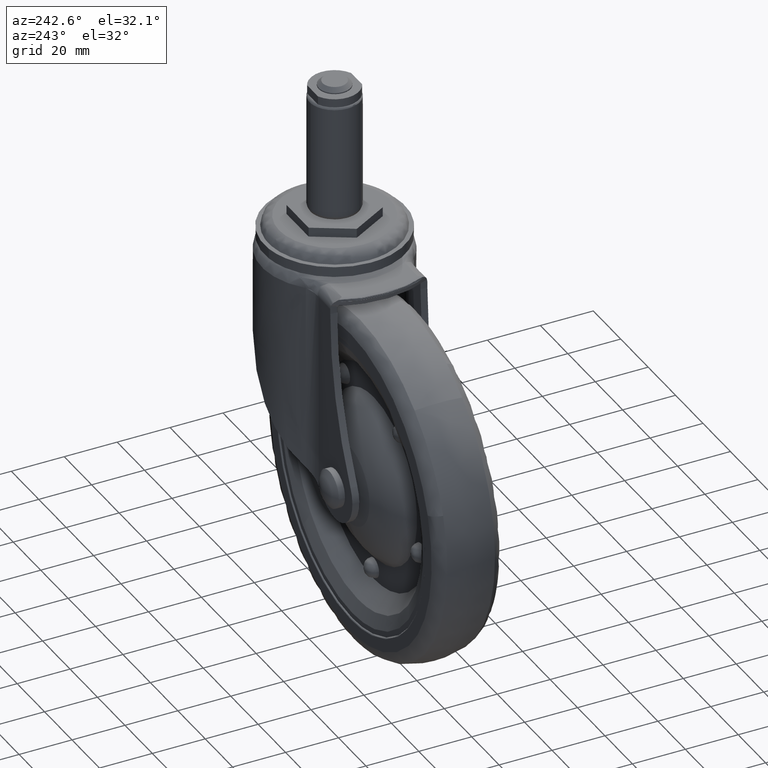
[diagram: clean part render]
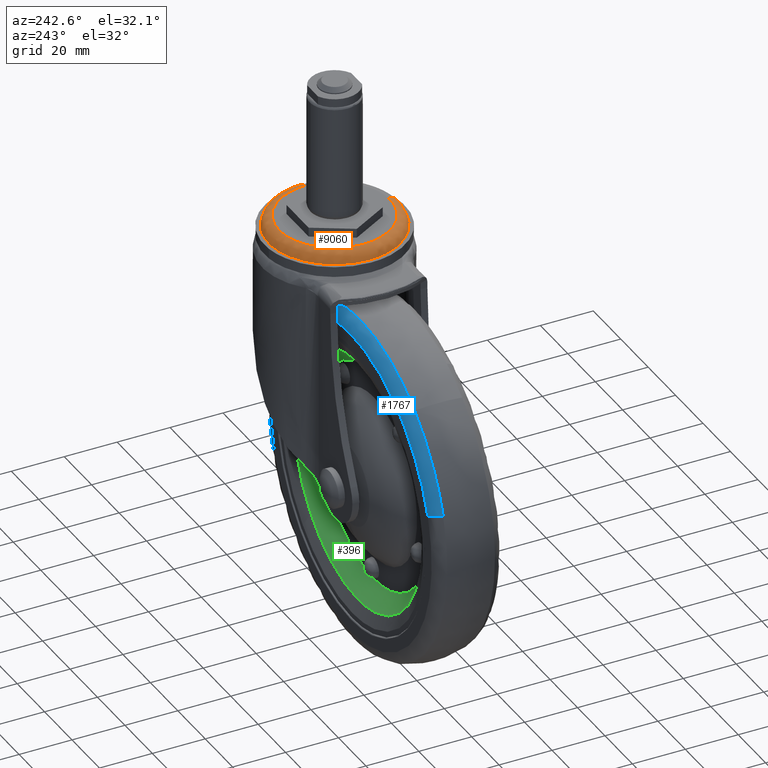
[diagram: same view with three faces highlighted in distinct colors, each labeled with its STEP entity id]
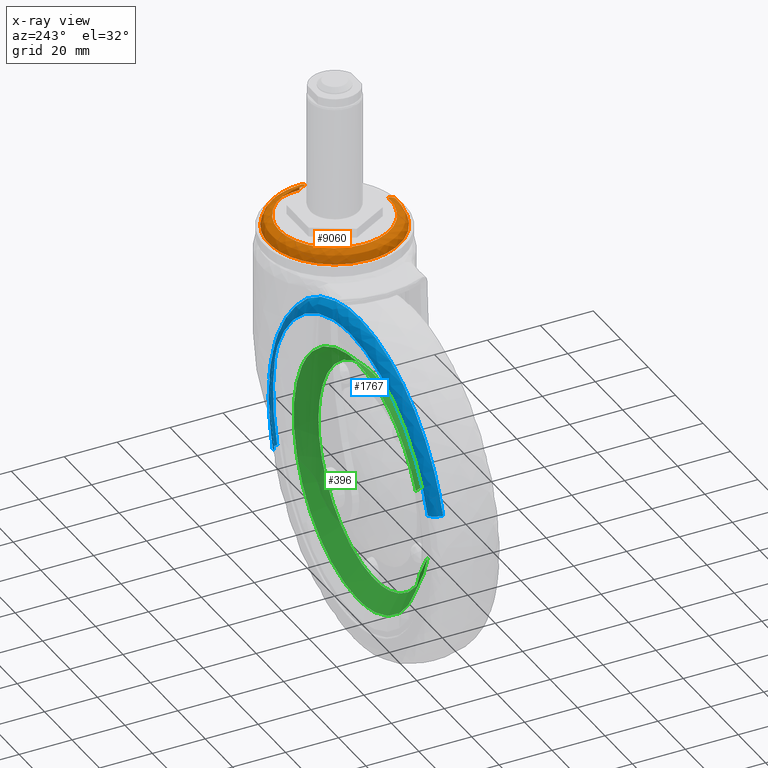
[diagram: x-ray of the same camera — body ghosted, the three highlighted faces saturated]
A machine part, auxiliary view with three faces highlighted in distinct colors.
The next image is the same camera in x-ray (body ghosted, the three faces saturated) — at least one of them is partly hidden behind the body in this view.
Their STEP definitions:

[orange] entity #9060 — the highlighted face is a freeform B-spline surface patch.
#8925=CARTESIAN_POINT('',(1.445000917704482,-20.671407473909525,-2.509465567661533));
#8926=CARTESIAN_POINT('',(0.853394687727092,-20.712762739452813,-2.509465567661533));
#8927=CARTESIAN_POINT('',(0.260391607862793,-20.720215028206738,-2.509465567661533));
#8928=CARTESIAN_POINT('',(-20.459823420343934,-20.980606636069520,-2.509465567661533));
#8929=CARTESIAN_POINT('',(-20.720215028206738,-0.260391607862794,-2.509465567661533));
#8930=CARTESIAN_POINT('',(-20.980606636069520,20.459823420343934,-2.509465567661533));
#8931=CARTESIAN_POINT('',(-0.260391607862795,20.720215028206738,-2.509465567661533));
#8932=CARTESIAN_POINT('',(20.459823420343934,20.980606636069520,-2.509465567661533));
#8933=CARTESIAN_POINT('',(20.720215028206738,0.260391607862796,-2.509465567661533));
#8934=CARTESIAN_POINT('',(1.764957582710349,-25.248535775555400,-2.189633924568727));
#8935=CARTESIAN_POINT('',(1.042356033615126,-25.299048054552138,-2.189633924568726));
#8936=CARTESIAN_POINT('',(0.318048339721238,-25.308150452608508,-2.189633924568726));
#8937=CARTESIAN_POINT('',(-24.990102112887275,-25.626198792329738,-2.189633924568727));
#8938=CARTESIAN_POINT('',(-25.308150452608508,-0.318048339721239,-2.189633924568726));
#8939=CARTESIAN_POINT('',(-25.626198792329738,24.990102112887275,-2.189633924568727));
#8940=CARTESIAN_POINT('',(-0.318048339721241,25.308150452608508,-2.189633924568726));
#8941=CARTESIAN_POINT('',(24.990102112887275,25.626198792329738,-2.189633924568727));
#8942=CARTESIAN_POINT('',(25.308150452608508,0.318048339721242,-2.189633924568726));
#8943=CARTESIAN_POINT('',(1.742654717695469,-24.929482960495204,-6.777931639467693));
#8944=CARTESIAN_POINT('',(1.029184314281529,-24.979356941693101,-6.777931639467691));
#8945=CARTESIAN_POINT('',(0.314029325746909,-24.988344317407204,-6.777931639467690));
#8946=CARTESIAN_POINT('',(-24.674314991660289,-25.302373643154120,-6.777931639467689));
#8947=CARTESIAN_POINT('',(-24.988344317407204,-0.314029325746911,-6.777931639467690));
#8948=CARTESIAN_POINT('',(-25.302373643154120,24.674314991660289,-6.777931639467689));
#8949=CARTESIAN_POINT('',(-0.314029325746912,24.988344317407204,-6.777931639467690));
#8950=CARTESIAN_POINT('',(24.674314991660289,25.302373643154120,-6.777931639467689));
#8951=CARTESIAN_POINT('',(24.988344317407204,0.314029325746914,-6.777931639467690));
#8959=(BOUNDED_SURFACE()B_SPLINE_SURFACE(2,2,((#8925,#8934,#8943),(#8926,#8935,#8944),(#8927,#8936,#8945),(#8928,#8937,#8946),(#8929,#8938,#8947),(#8930,#8939,#8948),(#8931,#8940,#8949),(#8932,#8941,#8950),(#8933,#8942,#8951)),.UNSPECIFIED.,.F.,.F.,.U.)B_SPLINE_SURFACE_WITH_KNOTS((3,2,2,2,3),(3,3),(0.0,1.656210966895878,43.061524626477024,84.466838286058163,125.872151945639300),(0.0,7.289496406772130),.UNSPECIFIED.)GEOMETRIC_REPRESENTATION_ITEM()RATIONAL_B_SPLINE_SURFACE(((0.895729780707462,0.587800190257190,0.895729757996359),(0.905606538837210,0.594281564922667,0.905606515875684),(0.916342144609695,0.601326536800914,0.916342121375969),(0.647951744340539,0.425202071879348,0.647951727911814),(0.916342144609695,0.601326536800914,0.916342121375969),(0.647951744340539,0.425202071879348,0.647951727911814),(0.916342144609695,0.601326536800914,0.916342121375969),(0.647951744340539,0.425202071879348,0.647951727911814),(0.916342144609695,0.601326536800914,0.916342121375969)))REPRESENTATION_ITEM('')SURFACE());
#8960=CARTESIAN_POINT('',(1.464398284455873,-20.948879160680089,-2.499783000000094));
#8961=VERTEX_POINT('',#8960);
#8962=CARTESIAN_POINT('',(-21.0,0.0,-2.499783000000095));
#8963=VERTEX_POINT('',#8962);
#8964=CARTESIAN_POINT('',(1.464398284455874,-20.948879160680089,-2.499783000000094));
#8965=CARTESIAN_POINT('',(0.733091434038523,-21.0,-2.499783000000096));
#8966=CARTESIAN_POINT('',(0.0,-21.0,-2.499783000000095));
#8967=CARTESIAN_POINT('',(-21.000000000000007,-21.000000000000007,-2.499783000000096));
#8968=CARTESIAN_POINT('',(-21.0,0.0,-2.499783000000095));
#8976=(BOUNDED_CURVE()B_SPLINE_CURVE(2,(#8964,#8965,#8966,#8967,#8968),.UNSPECIFIED.,.F.,.U.)B_SPLINE_CURVE_WITH_KNOTS((3,2,3),(0.737833686524181,0.750000000000000,1.0),.UNSPECIFIED.)CURVE()GEOMETRIC_REPRESENTATION_ITEM()RATIONAL_B_SPLINE_CURVE((0.972879876363898,0.985746277139895,1.0,0.707106781186547,1.0))REPRESENTATION_ITEM(''));
#8977=EDGE_CURVE('',#8961,#8963,#8976,.T.);
#8978=ORIENTED_EDGE('',*,*,#8977,.T.);
#8979=CARTESIAN_POINT('',(20.998341936107170,0.263886838147629,-2.499783000000094));
#8980=VERTEX_POINT('',#8979);
#8981=CARTESIAN_POINT('',(-21.0,0.0,-2.499783000000095));
#8982=CARTESIAN_POINT('',(-21.000000000000007,21.000000000000007,-2.499783000000096));
#8983=CARTESIAN_POINT('',(0.0,21.0,-2.499783000000095));
#8984=CARTESIAN_POINT('',(20.737750527068297,20.999999999999996,-2.499783000000096));
#8985=CARTESIAN_POINT('',(20.998341936107174,0.263886838147629,-2.499783000000095));
#8993=(BOUNDED_CURVE()B_SPLINE_CURVE(2,(#8981,#8982,#8983,#8984,#8985),.UNSPECIFIED.,.F.,.U.)B_SPLINE_CURVE_WITH_KNOTS((3,2,3),(0.0,0.250000000000000,0.497784295913373),.UNSPECIFIED.)CURVE()GEOMETRIC_REPRESENTATION_ITEM()RATIONAL_B_SPLINE_CURVE((1.0,0.707106781186547,1.0,0.709702639994029,0.994854295624782))REPRESENTATION_ITEM(''));
#8994=EDGE_CURVE('',#8963,#8980,#8993,.T.);
#8995=ORIENTED_EDGE('',*,*,#8994,.T.);
#8996=CARTESIAN_POINT('',(24.998026105094059,0.314150997190723,-6.499782999948542));
#8997=VERTEX_POINT('',#8996);
#8998=CARTESIAN_POINT('',(20.998341936107170,0.263886838147629,-2.499783000000094));
#8999=CARTESIAN_POINT('',(24.998026104992309,0.314150997082501,-2.499783015667934));
#9000=CARTESIAN_POINT('',(24.998026105094048,0.314150997190723,-6.499782999948542));
#9008=(BOUNDED_CURVE()B_SPLINE_CURVE(2,(#8998,#8999,#9000),.UNSPECIFIED.,.F.,.U.)B_SPLINE_CURVE_WITH_KNOTS((3,3),(-1.734750787588309,-0.265249208368382),.UNSPECIFIED.)CURVE()GEOMETRIC_REPRESENTATION_ITEM()RATIONAL_B_SPLINE_CURVE((0.889029722134028,0.628638946943257,0.889029723566950))REPRESENTATION_ITEM(''));
#9009=EDGE_CURVE('',#8980,#8997,#9008,.T.);
#9010=ORIENTED_EDGE('',*,*,#9009,.T.);
#9011=CARTESIAN_POINT('',(-25.0,0.0,-6.499783000000091));
#9012=VERTEX_POINT('',#9011);
#9013=CARTESIAN_POINT('',(-25.0,0.0,-6.499783000000091));
#9014=CARTESIAN_POINT('',(-25.000000000000004,25.000000000000004,-6.499783000000091));
#9015=CARTESIAN_POINT('',(0.0,25.0,-6.499783000000091));
#9016=CARTESIAN_POINT('',(24.687798247471655,25.0,-6.499783000000091));
#9017=CARTESIAN_POINT('',(24.998026105094052,0.314150997190723,-6.499782999948542));
#9025=(BOUNDED_CURVE()B_SPLINE_CURVE(2,(#9013,#9014,#9015,#9016,#9017),.UNSPECIFIED.,.F.,.U.)B_SPLINE_CURVE_WITH_KNOTS((3,2,3),(0.0,0.250000000000000,0.497784295920224),.UNSPECIFIED.)CURVE()GEOMETRIC_REPRESENTATION_ITEM()RATIONAL_B_SPLINE_CURVE((1.0,0.707106781186547,1.0,0.709702639986002,0.994854295640550))REPRESENTATION_ITEM(''));
#9026=EDGE_CURVE('',#9012,#8997,#9025,.T.);
#9027=ORIENTED_EDGE('',*,*,#9026,.F.);
#9028=CARTESIAN_POINT('',(1.743331289518651,-24.939141846001540,-6.499782999951200));
#9029=VERTEX_POINT('',#9028);
#9030=CARTESIAN_POINT('',(1.743331289518651,-24.939141846001544,-6.499782999951200));
#9031=CARTESIAN_POINT('',(0.872727897000884,-24.999999999999996,-6.499783000000091));
#9032=CARTESIAN_POINT('',(0.0,-25.0,-6.499783000000091));
#9033=CARTESIAN_POINT('',(-25.000000000000004,-25.000000000000004,-6.499783000000091));
#9034=CARTESIAN_POINT('',(-25.0,0.0,-6.499783000000091));
#9042=(BOUNDED_CURVE()B_SPLINE_CURVE(2,(#9030,#9031,#9032,#9033,#9034),.UNSPECIFIED.,.F.,.U.)B_SPLINE_CURVE_WITH_KNOTS((3,2,3),(0.737833686533306,0.750000000000000,1.0),.UNSPECIFIED.)CURVE()GEOMETRIC_REPRESENTATION_ITEM()RATIONAL_B_SPLINE_CURVE((0.972879876383198,0.985746277150586,1.0,0.707106781186547,1.0))REPRESENTATION_ITEM(''));
#9043=EDGE_CURVE('',#9029,#9012,#9042,.T.);
#9044=ORIENTED_EDGE('',*,*,#9043,.F.);
#9045=CARTESIAN_POINT('',(1.464398284455873,-20.948879160680082,-2.499783000000095));
#9046=CARTESIAN_POINT('',(1.743331289379219,-24.939141845913269,-2.499783020204555));
#9047=CARTESIAN_POINT('',(1.743331289518650,-24.939141846001540,-6.499782999951200));
#9055=(BOUNDED_CURVE()B_SPLINE_CURVE(2,(#9045,#9046,#9047),.UNSPECIFIED.,.F.,.U.)B_SPLINE_CURVE_WITH_KNOTS((3,3),(-1.734750786409815,-0.265249208366999),.UNSPECIFIED.)CURVE()GEOMETRIC_REPRESENTATION_ITEM()RATIONAL_B_SPLINE_CURVE((0.869031710057037,0.614498217446662,0.869031711866461))REPRESENTATION_ITEM(''));
#9056=EDGE_CURVE('',#8961,#9029,#9055,.T.);
#9057=ORIENTED_EDGE('',*,*,#9056,.F.);
#9058=EDGE_LOOP('',(#8978,#8995,#9010,#9027,#9044,#9057));
#9059=FACE_OUTER_BOUND('',#9058,.T.);
#9060=ADVANCED_FACE('',(#9059),#8959,.T.);

[blue] entity #1767 — the highlighted face is a freeform B-spline surface patch.
#1633=CARTESIAN_POINT('',(19.690263756564075,12.491450431167637,-104.095051582913260));
#1634=CARTESIAN_POINT('',(37.785127339477313,12.491450431167642,-48.404787826349171));
#1635=CARTESIAN_POINT('',(-17.905136417086752,12.491450431167637,-30.309924243435937));
#1636=CARTESIAN_POINT('',(-73.595400173650816,12.491450431167642,-12.215060660522685));
#1637=CARTESIAN_POINT('',(-91.690263756564079,12.491450431167637,-67.905324417086760));
#1638=CARTESIAN_POINT('',(23.620809662357878,12.733445301618310,-105.372163364653230));
#1639=CARTESIAN_POINT('',(42.992785027011138,12.733445301618312,-45.751353702295390));
#1640=CARTESIAN_POINT('',(-16.628024635346740,12.733445301618310,-26.379378337642130));
#1641=CARTESIAN_POINT('',(-76.248834297704590,12.733445301618312,-7.007402972988883));
#1642=CARTESIAN_POINT('',(-95.620809662357885,12.733445301618310,-66.628212635346756));
#1643=CARTESIAN_POINT('',(24.580186287188702,8.718324625239777,-105.683883726166240));
#1644=CARTESIAN_POINT('',(44.263882013354937,8.718324625239777,-45.103697438977548));
#1645=CARTESIAN_POINT('',(-16.316304273833754,8.718324625239777,-25.420001712811324));
#1646=CARTESIAN_POINT('',(-76.896490561022446,8.718324625239777,-5.736305986645071));
#1647=CARTESIAN_POINT('',(-96.580186287188681,8.718324625239777,-66.316492273833745));
#1655=(BOUNDED_SURFACE()B_SPLINE_SURFACE(2,2,((#1633,#1638,#1643),(#1634,#1639,#1644),(#1635,#1640,#1645),(#1636,#1641,#1646),(#1637,#1642,#1647)),.UNSPECIFIED.,.F.,.F.,.U.)B_SPLINE_SURFACE_WITH_KNOTS((3,2,3),(3,3),(0.0,105.537933198723490,211.075866397446990),(0.0,7.205188882730115),.UNSPECIFIED.)GEOMETRIC_REPRESENTATION_ITEM()RATIONAL_B_SPLINE_SURFACE(((0.920528647243551,0.708645068185674,0.919521834147018),(0.650912048742394,0.501087733168494,0.650200124374448),(0.920528647243551,0.708645068185674,0.919521834147018),(0.650912048742394,0.501087733168494,0.650200124374448),(0.920528647243551,0.708645068185674,0.919521834147018)))REPRESENTATION_ITEM('')SURFACE());
#1656=CARTESIAN_POINT('',(19.968230420053722,12.500000000000000,-104.185368427165500));
#1657=VERTEX_POINT('',#1656);
#1658=CARTESIAN_POINT('',(-36.0,12.500000000000000,-27.151707964576509));
#1659=VERTEX_POINT('',#1658);
#1660=CARTESIAN_POINT('',(19.968230420053718,12.499999999999995,-104.185368427165490));
#1661=CARTESIAN_POINT('',(22.848480035423506,12.500000000000000,-95.320871574738760));
#1662=CARTESIAN_POINT('',(22.848480035423499,12.500000000000000,-86.000188000000009));
#1663=CARTESIAN_POINT('',(22.848480035423506,12.500000000000000,-27.151707964576506));
#1664=CARTESIAN_POINT('',(-36.0,12.500000000000000,-27.151707964576509));
#1672=(BOUNDED_CURVE()B_SPLINE_CURVE(2,(#1660,#1661,#1662,#1663,#1664),.UNSPECIFIED.,.F.,.U.)B_SPLINE_CURVE_WITH_KNOTS((3,2,3),(0.197450174524112,0.250000000000000,0.500000000000000),.UNSPECIFIED.)CURVE()GEOMETRIC_REPRESENTATION_ITEM()RATIONAL_B_SPLINE_CURVE((0.902750339221651,0.938434049873128,1.0,0.707106781186548,1.0))REPRESENTATION_ITEM(''));
#1673=EDGE_CURVE('',#1657,#1659,#1672,.T.);
#1674=ORIENTED_EDGE('',*,*,#1673,.T.);
#1675=CARTESIAN_POINT('',(-91.968230420941595,12.500000000000000,-67.815007572527406));
#1676=VERTEX_POINT('',#1675);
#1677=CARTESIAN_POINT('',(-36.0,12.500000000000000,-27.151707964576509));
#1678=CARTESIAN_POINT('',(-78.755923453618465,12.499999999999998,-27.151707964576492));
#1679=CARTESIAN_POINT('',(-91.968230420941595,12.500000000000007,-67.815007572527406));
#1687=(BOUNDED_CURVE()B_SPLINE_CURVE(2,(#1677,#1678,#1679),.UNSPECIFIED.,.F.,.U.)B_SPLINE_CURVE_WITH_KNOTS((3,3),(0.500000000000000,0.697450174524016),.UNSPECIFIED.)CURVE()GEOMETRIC_REPRESENTATION_ITEM()RATIONAL_B_SPLINE_CURVE((1.0,0.768672731313532,0.902750339221521))REPRESENTATION_ITEM(''));
#1688=EDGE_CURVE('',#1659,#1676,#1687,.T.);
#1689=ORIENTED_EDGE('',*,*,#1688,.T.);
#1690=CARTESIAN_POINT('',(-96.504494531188129,8.999997489804212,-66.341129911118955));
#1691=VERTEX_POINT('',#1690);
#1692=CARTESIAN_POINT('',(-91.968230420941595,12.500000000000002,-67.815007572527421));
#1693=CARTESIAN_POINT('',(-95.457662223742375,12.499999985634979,-66.681244398798469));
#1694=CARTESIAN_POINT('',(-96.504494531188129,8.999997489804212,-66.341129911118955));
#1702=(BOUNDED_CURVE()B_SPLINE_CURVE(2,(#1692,#1693,#1694),.UNSPECIFIED.,.F.,.U.)B_SPLINE_CURVE_WITH_KNOTS((3,3),(-1.687756064710496,-0.315837435588091),.UNSPECIFIED.)CURVE()GEOMETRIC_REPRESENTATION_ITEM()RATIONAL_B_SPLINE_CURVE((0.902155870920669,0.726972102252016,0.901240542132862))REPRESENTATION_ITEM(''));
#1703=EDGE_CURVE('',#1676,#1691,#1702,.T.);
#1704=ORIENTED_EDGE('',*,*,#1703,.T.);
#1705=CARTESIAN_POINT('',(-75.680395793638269,8.999999999848955,-36.273550142189428));
#1706=VERTEX_POINT('',#1705);
#1707=CARTESIAN_POINT('',(-75.680395793638269,8.999999999848955,-36.273550142189428));
#1708=CARTESIAN_POINT('',(-90.604399867715571,8.999998744826584,-48.182466430071024));
#1709=CARTESIAN_POINT('',(-96.504494531188129,8.999997489804212,-66.341129911118955));
#1717=(BOUNDED_CURVE()B_SPLINE_CURVE(2,(#1707,#1708,#1709),.UNSPECIFIED.,.F.,.U.)B_SPLINE_CURVE_WITH_KNOTS((3,3),(0.608098577602717,0.697450279246699),.UNSPECIFIED.)CURVE()GEOMETRIC_REPRESENTATION_ITEM()RATIONAL_B_SPLINE_CURVE((0.856230744649383,0.842076542997381,0.902750481444509))REPRESENTATION_ITEM(''));
#1718=EDGE_CURVE('',#1706,#1691,#1717,.T.);
#1719=ORIENTED_EDGE('',*,*,#1718,.F.);
#1720=CARTESIAN_POINT('',(-36.0,9.0,-22.382011957491709));
#1721=VERTEX_POINT('',#1720);
#1722=CARTESIAN_POINT('',(-36.0,9.0,-22.382011957491709));
#1723=CARTESIAN_POINT('',(-58.271812164744460,9.000000000000002,-22.382011957491713));
#1724=CARTESIAN_POINT('',(-75.680395793638269,8.999999999848955,-36.273550142189428));
#1732=(BOUNDED_CURVE()B_SPLINE_CURVE(2,(#1722,#1723,#1724),.UNSPECIFIED.,.F.,.U.)B_SPLINE_CURVE_WITH_KNOTS((3,3),(0.500000000000000,0.608098577602718),.UNSPECIFIED.)CURVE()GEOMETRIC_REPRESENTATION_ITEM()RATIONAL_B_SPLINE_CURVE((1.0,0.873354638627137,0.856230744649383))REPRESENTATION_ITEM(''));
#1733=EDGE_CURVE('',#1721,#1706,#1732,.T.);
#1734=ORIENTED_EDGE('',*,*,#1733,.F.);
#1735=CARTESIAN_POINT('',(24.504480879984911,9.000000000184715,-105.659285548252800));
#1736=VERTEX_POINT('',#1735);
#1737=CARTESIAN_POINT('',(24.504480879984914,9.000000000184715,-105.659285548252840));
#1738=CARTESIAN_POINT('',(27.618176042508299,8.999999999999998,-96.076317206958990));
#1739=CARTESIAN_POINT('',(27.618176042508299,9.0,-86.000188000000009));
#1740=CARTESIAN_POINT('',(27.618176042508303,9.000000000000002,-22.382011957491709));
#1741=CARTESIAN_POINT('',(-36.0,9.0,-22.382011957491709));
#1749=(BOUNDED_CURVE()B_SPLINE_CURVE(2,(#1737,#1738,#1739,#1740,#1741),.UNSPECIFIED.,.F.,.U.)B_SPLINE_CURVE_WITH_KNOTS((3,2,3),(0.197450174526122,0.250000000000000,0.500000000000000),.UNSPECIFIED.)CURVE()GEOMETRIC_REPRESENTATION_ITEM()RATIONAL_B_SPLINE_CURVE((0.902750339224381,0.938434049875483,1.0,0.707106781186548,1.0))REPRESENTATION_ITEM(''));
#1750=EDGE_CURVE('',#1736,#1721,#1749,.T.);
#1751=ORIENTED_EDGE('',*,*,#1750,.F.);
#1752=CARTESIAN_POINT('',(19.968230420053715,12.500000000000000,-104.185368427165490));
#1753=CARTESIAN_POINT('',(23.457653852496623,12.499999987017587,-105.319150828474510));
#1754=CARTESIAN_POINT('',(24.504480879984914,9.000000000184715,-105.659285548252840));
#1762=(BOUNDED_CURVE()B_SPLINE_CURVE(2,(#1752,#1753,#1754),.UNSPECIFIED.,.F.,.U.)B_SPLINE_CURVE_WITH_KNOTS((3,3),(-1.687756065146378,-0.315838045578626),.UNSPECIFIED.)CURVE()GEOMETRIC_REPRESENTATION_ITEM()RATIONAL_B_SPLINE_CURVE((0.902155871031987,0.726972180087886,0.901240387164413))REPRESENTATION_ITEM(''));
#1763=EDGE_CURVE('',#1657,#1736,#1762,.T.);
#1764=ORIENTED_EDGE('',*,*,#1763,.F.);
#1765=EDGE_LOOP('',(#1674,#1689,#1704,#1719,#1734,#1751,#1764));
#1766=FACE_OUTER_BOUND('',#1765,.T.);
#1767=ADVANCED_FACE('',(#1766),#1655,.T.);

[green] entity #396 — the highlighted face is a freeform B-spline surface patch.
#230=CARTESIAN_POINT('',(-72.652680416888160,3.620442327090797,-69.057410241863266));
#231=CARTESIAN_POINT('',(-64.627369607343581,3.620442327090797,-51.696080444146347));
#232=CARTESIAN_POINT('',(-46.110134671120207,3.620442327090797,-46.907197875989759));
#233=CARTESIAN_POINT('',(-7.017144547109959,3.620442327090797,-36.797063204869559));
#234=CARTESIAN_POINT('',(3.092990124010250,3.620442327090797,-75.890053328879802));
#235=CARTESIAN_POINT('',(13.203124795130458,3.620442327090797,-114.983043452890070));
#236=CARTESIAN_POINT('',(-25.889865328879790,3.620442327090797,-125.093178124010290));
#237=CARTESIAN_POINT('',(-64.982855452890036,3.620442327090797,-135.203312795130470));
#238=CARTESIAN_POINT('',(-75.092990124010242,3.620442327090797,-96.110322671120215));
#239=CARTESIAN_POINT('',(-78.541501249153356,10.107980098581148,-66.335290563745986));
#240=CARTESIAN_POINT('',(-69.226799951843176,10.107980098581148,-46.184594219687348));
#241=CARTESIAN_POINT('',(-47.734484404649308,10.107980098581150,-40.626303490657520));
#242=CARTESIAN_POINT('',(-2.360599895306818,10.107980098581148,-28.891819086008216));
#243=CARTESIAN_POINT('',(9.373884509342489,10.107980098581150,-74.265703595350701));
#244=CARTESIAN_POINT('',(21.108368913991796,10.107980098581148,-119.639588104693190));
#245=CARTESIAN_POINT('',(-24.265515595350688,10.107980098581150,-131.374072509342510));
#246=CARTESIAN_POINT('',(-69.639400104693181,10.107980098581148,-143.108556913991810));
#247=CARTESIAN_POINT('',(-81.373884509342489,10.107980098581150,-97.734672404649316));
#255=(BOUNDED_SURFACE()B_SPLINE_SURFACE(2,1,((#230,#239),(#231,#240),(#232,#241),(#233,#242),(#234,#243),(#235,#244),(#236,#245),(#237,#246),(#238,#247)),.UNSPECIFIED.,.F.,.F.,.U.)B_SPLINE_SURFACE_WITH_KNOTS((3,2,2,2,3),(2,2),(0.0,43.484722503806559,121.136012689175400,198.787302874544310,276.438593059913220),(0.0,9.174763902849401),.UNSPECIFIED.)GEOMETRIC_REPRESENTATION_ITEM()RATIONAL_B_SPLINE_SURFACE(((0.855662221768731,0.855662221768731),(0.835979797464467,0.835979797464467),(1.0,1.0),(0.707106781186548,0.707106781186548),(1.0,1.0),(0.707106781186548,0.707106781186548),(1.0,1.0),(0.707106781186548,0.707106781186548),(1.0,1.0)))REPRESENTATION_ITEM('')SURFACE());
#256=CARTESIAN_POINT('',(-64.762769082833131,9.949747470008212,-49.198231668013577));
#257=VERTEX_POINT('',#256);
#258=CARTESIAN_POINT('',(-78.397871471494611,9.949747468713893,-66.401683727044130));
#259=VERTEX_POINT('',#258);
#260=CARTESIAN_POINT('',(-64.762769082833131,9.949747470008212,-49.198231668013577));
#261=CARTESIAN_POINT('',(-73.659831931249229,9.949747469164221,-56.151779516289849));
#262=CARTESIAN_POINT('',(-78.397871471494611,9.949747468713893,-66.401683727044130));
#270=(BOUNDED_CURVE()B_SPLINE_CURVE(2,(#260,#261,#262),.UNSPECIFIED.,.F.,.U.)B_SPLINE_CURVE_WITH_KNOTS((3,3),(0.606567917885472,0.678730602234339),.UNSPECIFIED.)CURVE()GEOMETRIC_REPRESENTATION_ITEM()RATIONAL_B_SPLINE_CURVE((0.856737647417237,0.844271094878809,0.880611827928593))REPRESENTATION_ITEM(''));
#271=EDGE_CURVE('',#257,#259,#270,.T.);
#272=ORIENTED_EDGE('',*,*,#271,.F.);
#273=CARTESIAN_POINT('',(-36.0,9.949747468305851,-39.291721154953713));
#274=VERTEX_POINT('',#273);
#275=CARTESIAN_POINT('',(-36.0,9.949747468305851,-39.291721154953713));
#276=CARTESIAN_POINT('',(-52.087391189541080,9.949747468305851,-39.291721154953713));
#277=CARTESIAN_POINT('',(-64.762769082833131,9.949747470008212,-49.198231668013577));
#285=(BOUNDED_CURVE()B_SPLINE_CURVE(2,(#275,#276,#277),.UNSPECIFIED.,.F.,.U.)B_SPLINE_CURVE_WITH_KNOTS((3,3),(0.500000000000000,0.606567917885472),.UNSPECIFIED.)CURVE()GEOMETRIC_REPRESENTATION_ITEM()RATIONAL_B_SPLINE_CURVE((1.0,0.875147918033106,0.856737647417237))REPRESENTATION_ITEM(''));
#286=EDGE_CURVE('',#274,#257,#285,.T.);
#287=ORIENTED_EDGE('',*,*,#286,.F.);
#288=CARTESIAN_POINT('',(-2.765259411631484,9.949747468828456,-53.180485181609683));
#289=VERTEX_POINT('',#288);
#290=CARTESIAN_POINT('',(-2.765259411631484,9.949747468828456,-53.180485181609690));
#291=CARTESIAN_POINT('',(-16.480579580357556,9.949747468305851,-39.291721154953706));
#292=CARTESIAN_POINT('',(-36.0,9.949747468305851,-39.291721154953713));
#300=(BOUNDED_CURVE()B_SPLINE_CURVE(2,(#290,#291,#292),.UNSPECIFIED.,.F.,.U.)B_SPLINE_CURVE_WITH_KNOTS((3,3),(0.374051937432036,0.500000000000000),.UNSPECIFIED.)CURVE()GEOMETRIC_REPRESENTATION_ITEM()RATIONAL_B_SPLINE_CURVE((0.853561814883004,0.852442666204603,1.0))REPRESENTATION_ITEM(''));
#301=EDGE_CURVE('',#289,#274,#300,.T.);
#302=ORIENTED_EDGE('',*,*,#301,.F.);
#303=CARTESIAN_POINT('',(-36.0,9.949747468305851,-132.708654845046310));
#304=VERTEX_POINT('',#303);
#305=CARTESIAN_POINT('',(-36.0,9.949747468305851,-132.708654845046310));
#306=CARTESIAN_POINT('',(10.708466845046297,9.949747468305851,-132.708654845046280));
#307=CARTESIAN_POINT('',(10.708466845046299,9.949747468305851,-86.000188000000009));
#308=CARTESIAN_POINT('',(10.708466845046299,9.949747468305850,-66.824600102505414));
#309=CARTESIAN_POINT('',(-2.765259411631484,9.949747468828456,-53.180485181609690));
#317=(BOUNDED_CURVE()B_SPLINE_CURVE(2,(#305,#306,#307,#308,#309),.UNSPECIFIED.,.F.,.U.)B_SPLINE_CURVE_WITH_KNOTS((3,2,3),(0.0,0.250000000000000,0.374051937432036),.UNSPECIFIED.)CURVE()GEOMETRIC_REPRESENTATION_ITEM()RATIONAL_B_SPLINE_CURVE((1.0,0.707106781186547,1.0,0.854664114981944,0.853561814883004))REPRESENTATION_ITEM(''));
#318=EDGE_CURVE('',#304,#289,#317,.T.);
#319=ORIENTED_EDGE('',*,*,#318,.F.);
#320=CARTESIAN_POINT('',(-81.220691961662567,9.949747468343521,-97.695054118375822));
#321=VERTEX_POINT('',#320);
#322=CARTESIAN_POINT('',(-81.220691961662553,9.949747468343521,-97.695054118375822));
#323=CARTESIAN_POINT('',(-72.165559121550316,9.949747468305851,-132.708654845046340));
#324=CARTESIAN_POINT('',(-36.0,9.949747468305851,-132.708654845046310));
#332=(BOUNDED_CURVE()B_SPLINE_CURVE(2,(#322,#323,#324),.UNSPECIFIED.,.F.,.U.)B_SPLINE_CURVE_WITH_KNOTS((3,3),(0.792726229712766,1.0),.UNSPECIFIED.)CURVE()GEOMETRIC_REPRESENTATION_ITEM()RATIONAL_B_SPLINE_CURVE((0.916996154473075,0.757163672979887,1.0))REPRESENTATION_ITEM(''));
#333=EDGE_CURVE('',#321,#304,#332,.T.);
#334=ORIENTED_EDGE('',*,*,#333,.F.);
#335=CARTESIAN_POINT('',(-75.242446266388981,3.774815623294201,-96.148974657951200));
#336=VERTEX_POINT('',#335);
#337=CARTESIAN_POINT('',(-75.242446266388981,3.774815623294201,-96.148974657951200));
#338=CARTESIAN_POINT('',(-81.220691961662567,9.949747468343521,-97.695054118375822));
#339=QUASI_UNIFORM_CURVE('',1,(#337,#338),.UNSPECIFIED.,.F.,.U.);
#340=EDGE_CURVE('',#336,#321,#339,.T.);
#341=ORIENTED_EDGE('',*,*,#340,.F.);
#342=CARTESIAN_POINT('',(-36.0,3.774815623259515,-126.533722999999990));
#343=VERTEX_POINT('',#342);
#344=CARTESIAN_POINT('',(-75.242446266388981,3.774815623294201,-96.148974657951200));
#345=CARTESIAN_POINT('',(-67.384416048372501,3.774815623259515,-126.533723000000020));
#346=CARTESIAN_POINT('',(-36.0,3.774815623259515,-126.533722999999990));
#354=(BOUNDED_CURVE()B_SPLINE_CURVE(2,(#344,#345,#346),.UNSPECIFIED.,.F.,.U.)B_SPLINE_CURVE_WITH_KNOTS((3,3),(0.792726229712914,1.0),.UNSPECIFIED.)CURVE()GEOMETRIC_REPRESENTATION_ITEM()RATIONAL_B_SPLINE_CURVE((0.916996154472846,0.757163672980061,1.0))REPRESENTATION_ITEM(''));
#355=EDGE_CURVE('',#336,#343,#354,.T.);
#356=ORIENTED_EDGE('',*,*,#355,.T.);
#357=CARTESIAN_POINT('',(-36.0,3.774815623259515,-45.466653000000001));
#358=VERTEX_POINT('',#357);
#359=CARTESIAN_POINT('',(-36.0,3.774815623259515,-126.533722999999990));
#360=CARTESIAN_POINT('',(4.533535000000005,3.774815623259515,-126.533723000000020));
#361=CARTESIAN_POINT('',(4.533535000000005,3.774815623259515,-86.000188000000009));
#362=CARTESIAN_POINT('',(4.533535000000005,3.774815623259515,-45.466653000000001));
#363=CARTESIAN_POINT('',(-36.0,3.774815623259515,-45.466653000000001));
#371=(BOUNDED_CURVE()B_SPLINE_CURVE(2,(#359,#360,#361,#362,#363),.UNSPECIFIED.,.F.,.U.)B_SPLINE_CURVE_WITH_KNOTS((3,2,3),(0.0,0.250000000000000,0.500000000000000),.UNSPECIFIED.)CURVE()GEOMETRIC_REPRESENTATION_ITEM()RATIONAL_B_SPLINE_CURVE((1.0,0.707106781186547,1.0,0.707106781186547,1.0))REPRESENTATION_ITEM(''));
#372=EDGE_CURVE('',#343,#358,#371,.T.);
#373=ORIENTED_EDGE('',*,*,#372,.T.);
#374=CARTESIAN_POINT('',(-72.792807028006109,3.774815623259724,-68.992636424416162));
#375=VERTEX_POINT('',#374);
#376=CARTESIAN_POINT('',(-36.0,3.774815623259515,-45.466653000000001));
#377=CARTESIAN_POINT('',(-61.917872257397534,3.774815623259516,-45.466653000000008));
#378=CARTESIAN_POINT('',(-72.792807028006109,3.774815623259725,-68.992636424416162));
#386=(BOUNDED_CURVE()B_SPLINE_CURVE(2,(#376,#377,#378),.UNSPECIFIED.,.F.,.U.)B_SPLINE_CURVE_WITH_KNOTS((3,3),(0.500000000000000,0.678730602234654),.UNSPECIFIED.)CURVE()GEOMETRIC_REPRESENTATION_ITEM()RATIONAL_B_SPLINE_CURVE((1.0,0.790604074444102,0.880611827928911))REPRESENTATION_ITEM(''));
#387=EDGE_CURVE('',#358,#375,#386,.T.);
#388=ORIENTED_EDGE('',*,*,#387,.T.);
#389=CARTESIAN_POINT('',(-72.792807028006109,3.774815623259724,-68.992636424416162));
#390=CARTESIAN_POINT('',(-78.397871471494611,9.949747468713893,-66.401683727044130));
#391=QUASI_UNIFORM_CURVE('',1,(#389,#390),.UNSPECIFIED.,.F.,.U.);
#392=EDGE_CURVE('',#375,#259,#391,.T.);
#393=ORIENTED_EDGE('',*,*,#392,.T.);
#394=EDGE_LOOP('',(#272,#287,#302,#319,#334,#341,#356,#373,#388,#393));
#395=FACE_OUTER_BOUND('',#394,.T.);
#396=ADVANCED_FACE('',(#395),#255,.F.);